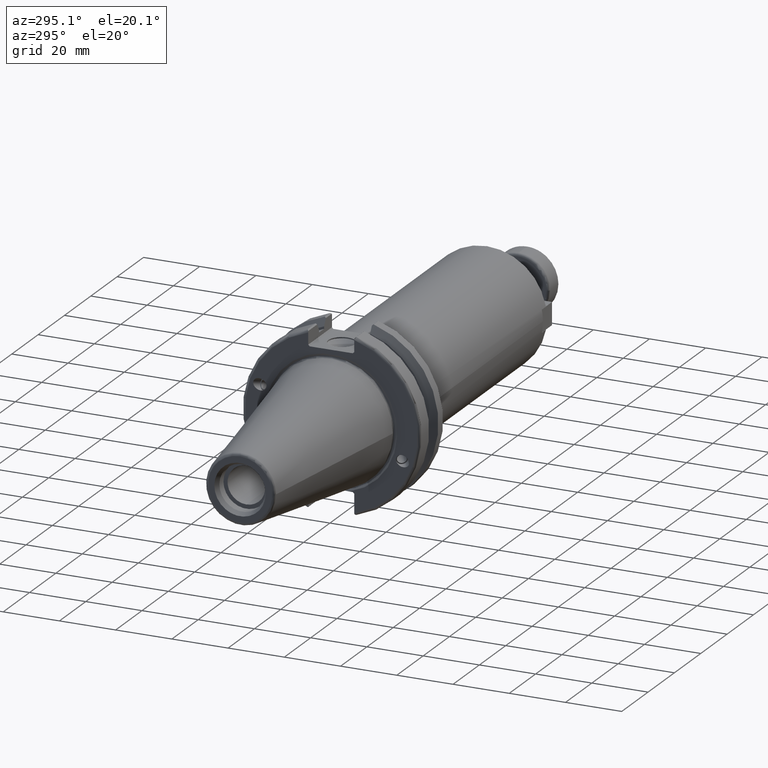
[diagram: clean part render]
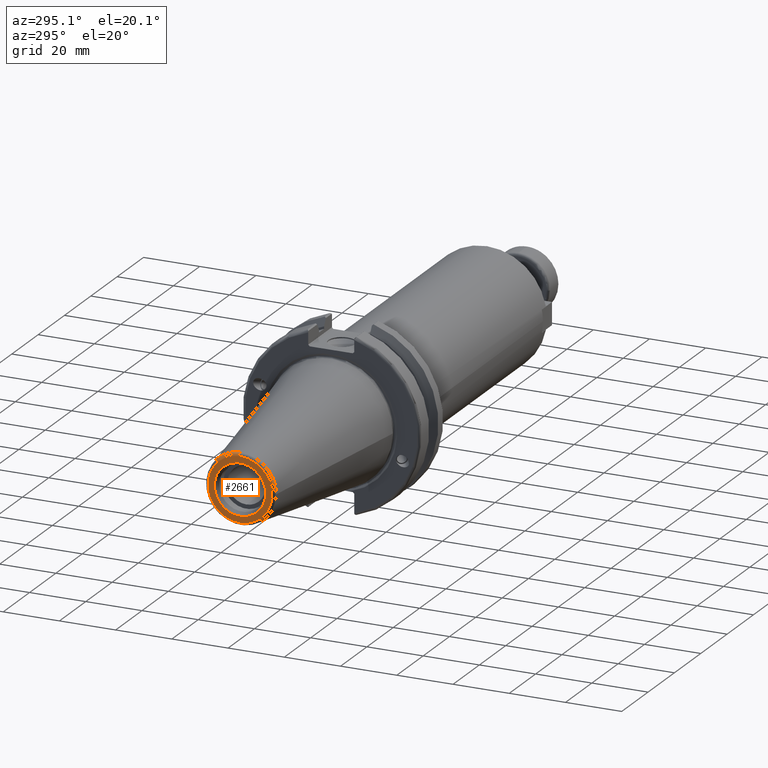
[diagram: same view with one face highlighted and labeled with its STEP entity id]
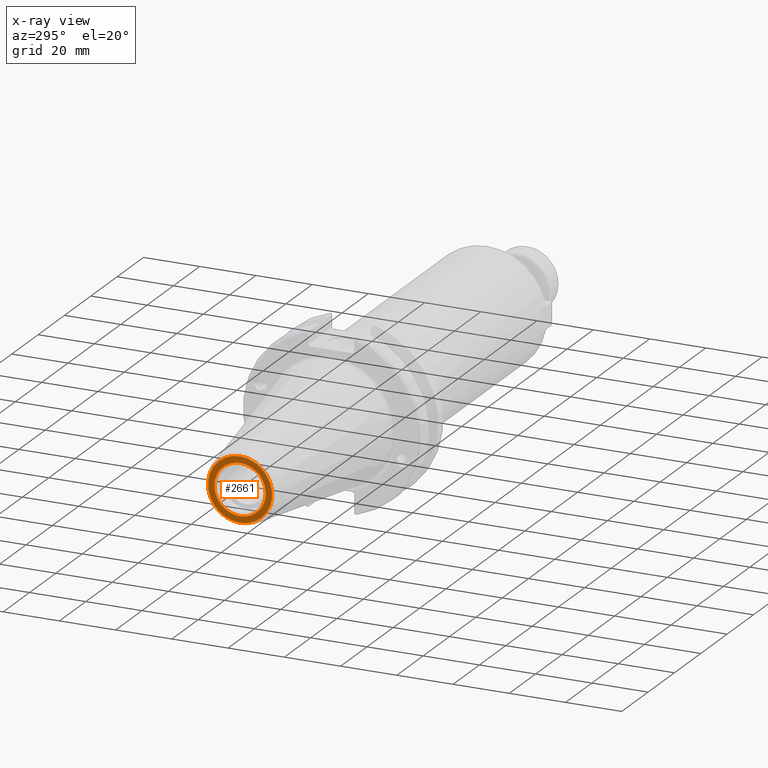
[diagram: x-ray of the same camera — body ghosted, the highlighted face saturated]
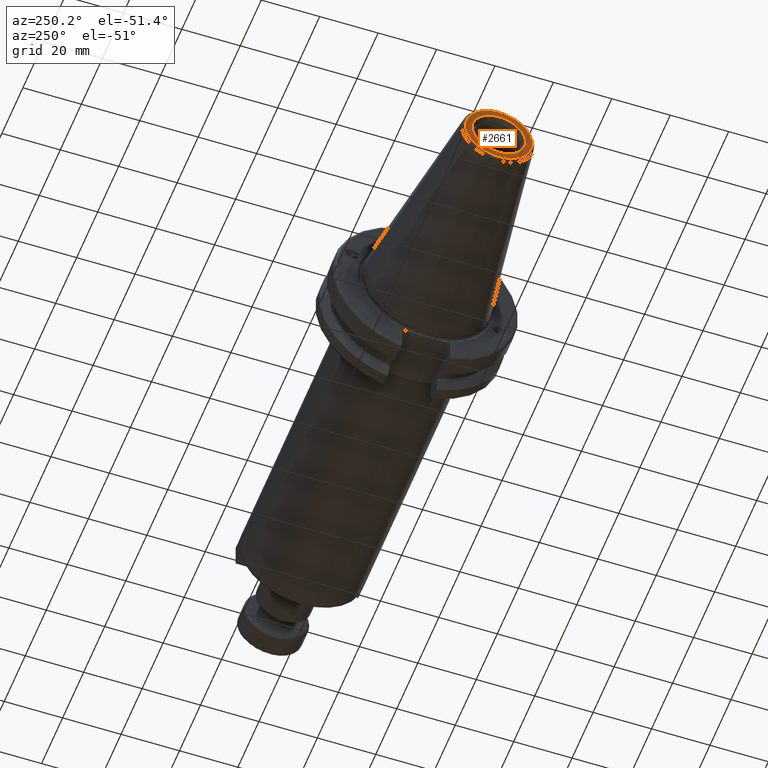
[diagram: same view with one face highlighted and labeled with its STEP entity id]
A machine part, auxiliary view. The second image highlights one B-rep face of the part: STEP entity #2661.
The next image is the same camera in x-ray: the body ghosted, the highlighted face saturated — about 0% of this face is hidden behind the body in this view.
A second angle (auxiliary view) of the same face is appended — the face is thin or edge-on in the first view.
In plain terms, the highlighted planar face has unit normal (-1, 0, 0).
Its self-contained STEP definition (entity closure, byte-faithful):
#230=FACE_BOUND('',#485,.T.);
#315=FACE_OUTER_BOUND('',#484,.T.);
#484=EDGE_LOOP('',(#2144));
#485=EDGE_LOOP('',(#2145));
#1001=CIRCLE('',#3016,11.4071305970304);
#1002=CIRCLE('',#3018,9.15);
#1236=VERTEX_POINT('',#4874);
#1237=VERTEX_POINT('',#4878);
#1569=EDGE_CURVE('',#1236,#1236,#1001,.T.);
#1570=EDGE_CURVE('',#1237,#1237,#1002,.T.);
#2144=ORIENTED_EDGE('',*,*,#1569,.F.);
#2145=ORIENTED_EDGE('',*,*,#1570,.T.);
#2539=PLANE('',#3017);
#2661=ADVANCED_FACE('',(#315,#230),#2539,.T.);
#3016=AXIS2_PLACEMENT_3D('',#4876,#3607,#3608);
#3017=AXIS2_PLACEMENT_3D('',#4877,#3609,#3610);
#3018=AXIS2_PLACEMENT_3D('',#4879,#3611,#3612);
#3607=DIRECTION('center_axis',(1.,0.,0.));
#3608=DIRECTION('ref_axis',(0.,-1.,1.83697019872103E-16));
#3609=DIRECTION('center_axis',(-1.,0.,0.));
#3610=DIRECTION('ref_axis',(0.,0.,1.));
#3611=DIRECTION('center_axis',(1.,0.,0.));
#3612=DIRECTION('ref_axis',(0.,0.,-1.));
#4874=CARTESIAN_POINT('',(-68.25,-1.39697059731091E-15,11.4071305970304));
#4876=CARTESIAN_POINT('Origin',(-68.25,0.,0.));
#4877=CARTESIAN_POINT('Origin',(-68.25,12.271875,0.));
#4878=CARTESIAN_POINT('',(-68.25,-9.15,-1.12055182121983E-15));
#4879=CARTESIAN_POINT('Origin',(-68.25,0.,0.));